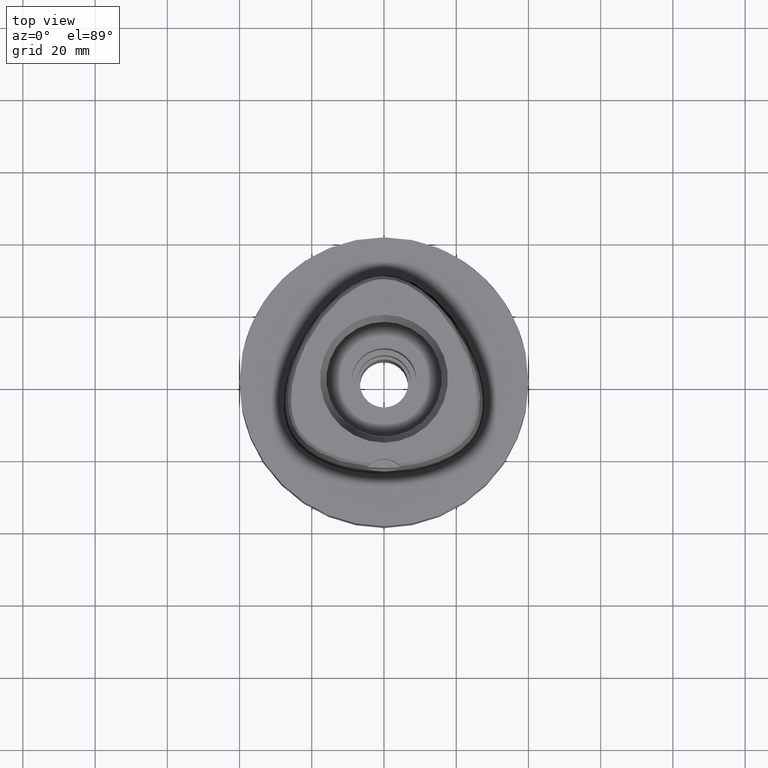
[diagram: clean part render]
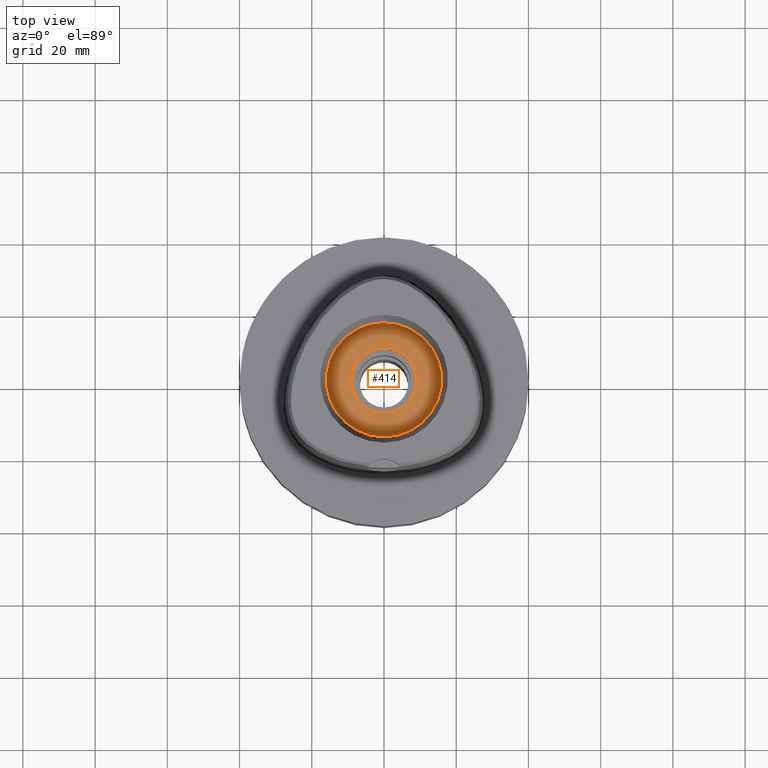
[diagram: same view with one face highlighted and labeled with its STEP entity id]
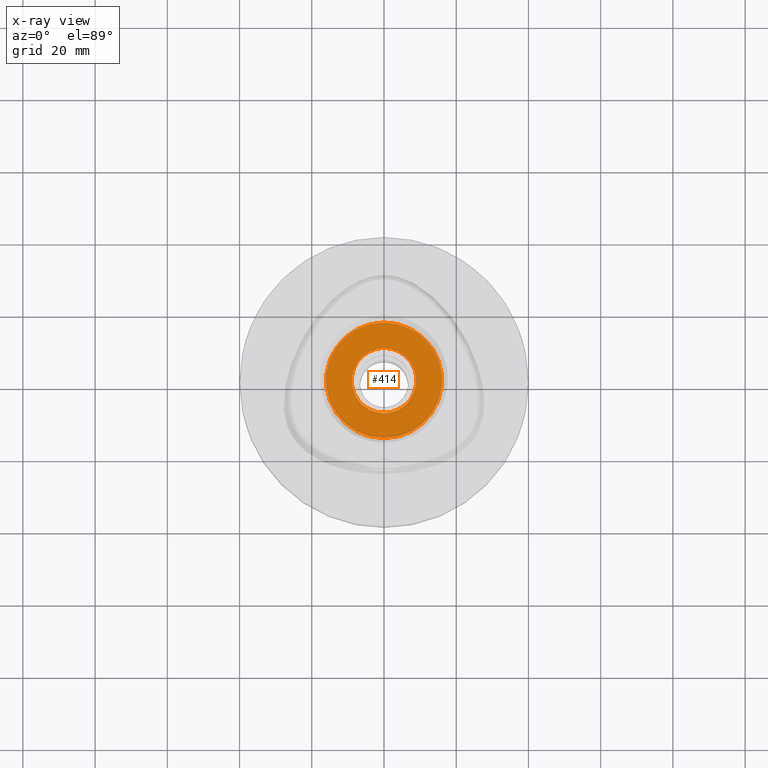
[diagram: x-ray of the same camera — body ghosted, the highlighted face saturated]
A machine part, top view. The second image highlights one B-rep face of the part: STEP entity #414.
The next image is the same camera in x-ray: the body ghosted, the highlighted face saturated — about 0% of this face is hidden behind the body in this view.
In plain terms, the highlighted planar face has unit normal (0, 0, -1).
Its self-contained STEP definition (entity closure, byte-faithful):
#87 = DIRECTION ( 'NONE',  ( 0.0000000000000000000, 0.0000000000000000000, -1.000000000000000000 ) ) ;
#342 = CARTESIAN_POINT ( 'NONE',  ( 0.0000000000000000000, 9.000000000000000000, 20.00000000000000000 ) ) ;
#389 = CARTESIAN_POINT ( 'NONE',  ( 0.0000000000000000000, 0.0000000000000000000, 20.00000000000000000 ) ) ;
#414 = ADVANCED_FACE ( 'NONE', ( #2748, #4386 ), #2040, .F. ) ;
#461 = CIRCLE ( 'NONE', #2437, 9.000000000000000000 ) ;
#950 = DIRECTION ( 'NONE',  ( 0.0000000000000000000, 0.0000000000000000000, -1.000000000000000000 ) ) ;
#995 = CARTESIAN_POINT ( 'NONE',  ( 0.0000000000000000000, -9.000000000000000000, 20.00000000000000000 ) ) ;
#1068 = CARTESIAN_POINT ( 'NONE',  ( 0.0000000000000000000, 16.00000000000000000, 20.00000000000000000 ) ) ;
#1111 = VERTEX_POINT ( 'NONE', #1068 ) ;
#1121 = DIRECTION ( 'NONE',  ( 0.0000000000000000000, 0.0000000000000000000, 1.000000000000000000 ) ) ;
#1136 = EDGE_CURVE ( 'NONE', #3821, #2969, #461, .T. ) ;
#1244 = ORIENTED_EDGE ( 'NONE', *, *, #3209, .F. ) ;
#1270 = AXIS2_PLACEMENT_3D ( 'NONE', #3621, #87, #1658 ) ;
#1610 = AXIS2_PLACEMENT_3D ( 'NONE', #3697, #4432, #3667 ) ;
#1635 = CARTESIAN_POINT ( 'NONE',  ( 0.0000000000000000000, 0.0000000000000000000, 20.00000000000000000 ) ) ;
#1658 = DIRECTION ( 'NONE',  ( 0.0000000000000000000, -1.000000000000000000, 0.0000000000000000000 ) ) ;
#1702 = EDGE_LOOP ( 'NONE', ( #1889, #1244 ) ) ;
#1889 = ORIENTED_EDGE ( 'NONE', *, *, #4376, .F. ) ;
#2030 = CIRCLE ( 'NONE', #2696, 9.000000000000000000 ) ;
#2040 = PLANE ( 'NONE',  #1270 ) ;
#2118 = DIRECTION ( 'NONE',  ( 0.0000000000000000000, 1.000000000000000000, 0.0000000000000000000 ) ) ;
#2301 = EDGE_CURVE ( 'NONE', #2969, #3821, #2030, .T. ) ;
#2349 = DIRECTION ( 'NONE',  ( 0.0000000000000000000, 0.0000000000000000000, 1.000000000000000000 ) ) ;
#2437 = AXIS2_PLACEMENT_3D ( 'NONE', #4668, #1121, #4618 ) ;
#2475 = VERTEX_POINT ( 'NONE', #3877 ) ;
#2690 = AXIS2_PLACEMENT_3D ( 'NONE', #1635, #950, #2118 ) ;
#2696 = AXIS2_PLACEMENT_3D ( 'NONE', #389, #2349, #2791 ) ;
#2748 = FACE_OUTER_BOUND ( 'NONE', #1702, .T. ) ;
#2791 = DIRECTION ( 'NONE',  ( 0.0000000000000000000, 1.000000000000000000, 0.0000000000000000000 ) ) ;
#2969 = VERTEX_POINT ( 'NONE', #342 ) ;
#3209 = EDGE_CURVE ( 'NONE', #1111, #2475, #4590, .T. ) ;
#3373 = ORIENTED_EDGE ( 'NONE', *, *, #1136, .F. ) ;
#3621 = CARTESIAN_POINT ( 'NONE',  ( 0.0000000000000000000, 0.0000000000000000000, 20.00000000000000000 ) ) ;
#3667 = DIRECTION ( 'NONE',  ( 0.0000000000000000000, -1.000000000000000000, 0.0000000000000000000 ) ) ;
#3697 = CARTESIAN_POINT ( 'NONE',  ( 0.0000000000000000000, 0.0000000000000000000, 20.00000000000000000 ) ) ;
#3821 = VERTEX_POINT ( 'NONE', #995 ) ;
#3877 = CARTESIAN_POINT ( 'NONE',  ( 0.0000000000000000000, -16.00000000000000000, 20.00000000000000000 ) ) ;
#3999 = ORIENTED_EDGE ( 'NONE', *, *, #2301, .F. ) ;
#4091 = CIRCLE ( 'NONE', #1610, 16.00000000000000000 ) ;
#4332 = EDGE_LOOP ( 'NONE', ( #3373, #3999 ) ) ;
#4376 = EDGE_CURVE ( 'NONE', #2475, #1111, #4091, .T. ) ;
#4386 = FACE_BOUND ( 'NONE', #4332, .T. ) ;
#4432 = DIRECTION ( 'NONE',  ( 0.0000000000000000000, 0.0000000000000000000, -1.000000000000000000 ) ) ;
#4590 = CIRCLE ( 'NONE', #2690, 16.00000000000000000 ) ;
#4618 = DIRECTION ( 'NONE',  ( 0.0000000000000000000, -1.000000000000000000, 0.0000000000000000000 ) ) ;
#4668 = CARTESIAN_POINT ( 'NONE',  ( 0.0000000000000000000, 0.0000000000000000000, 20.00000000000000000 ) ) ;